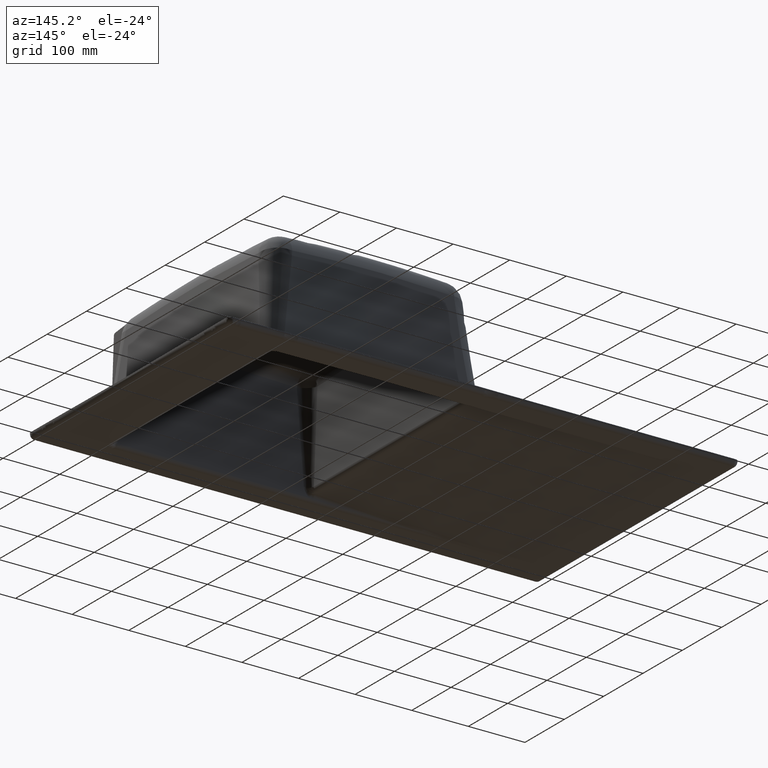
[diagram: clean part render]
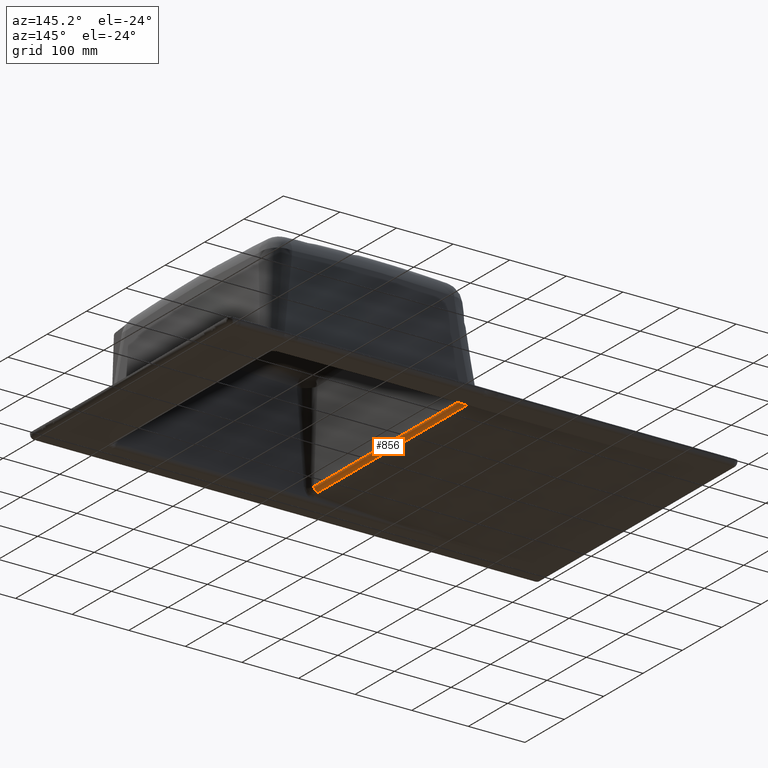
[diagram: same view with one face highlighted and labeled with its STEP entity id]
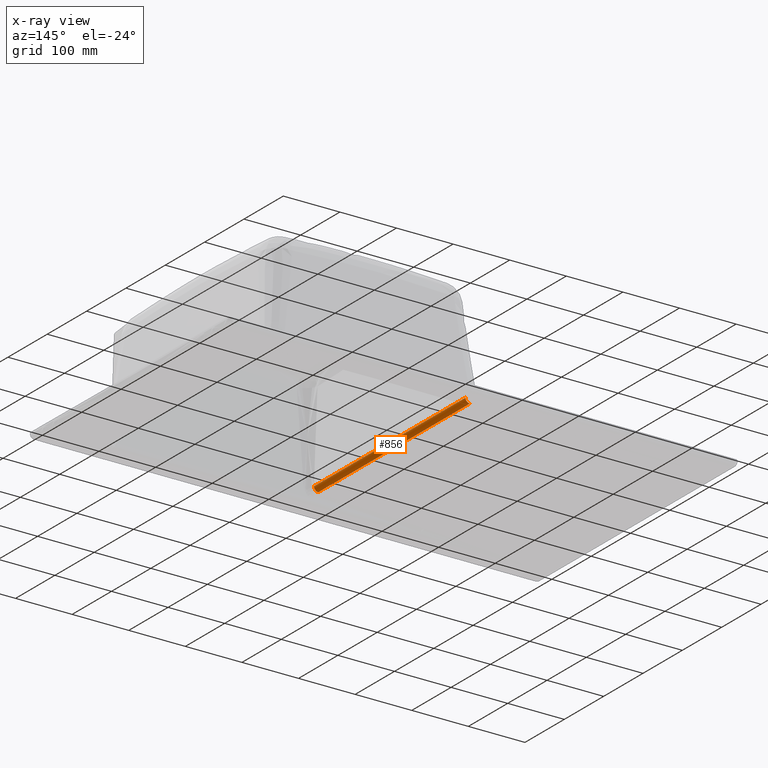
[diagram: x-ray of the same camera — body ghosted, the highlighted face saturated]
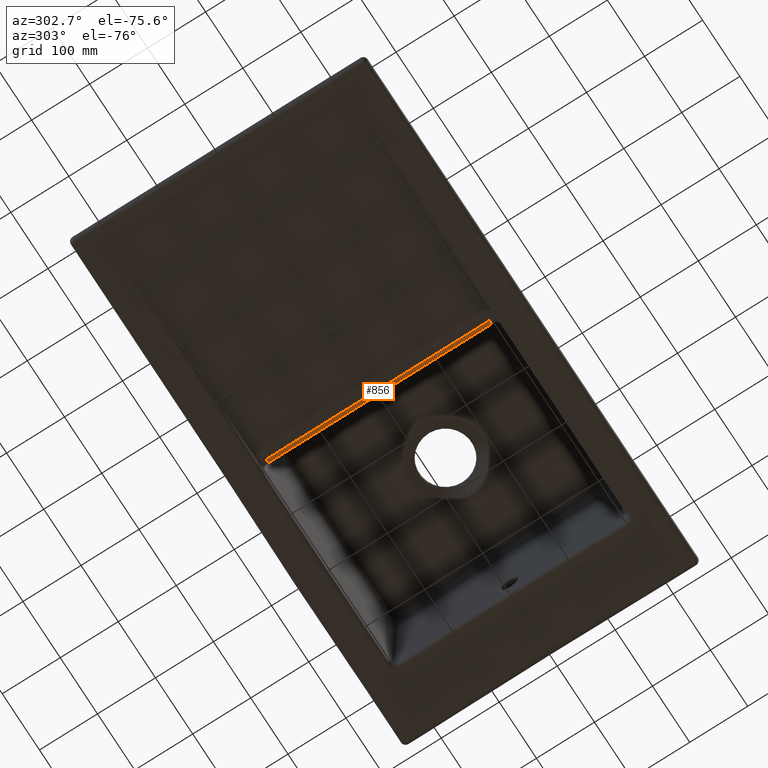
[diagram: same view with one face highlighted and labeled with its STEP entity id]
A machine part, auxiliary view. The second image highlights one B-rep face of the part: STEP entity #856.
The next image is the same camera in x-ray: the body ghosted, the highlighted face saturated — about 0% of this face is hidden behind the body in this view.
A second angle (auxiliary view) of the same face is appended — the face is thin or edge-on in the first view.
In plain terms, the highlighted cylindrical surface (edge-blend (fillet) strip) has radius 8 mm, axis along (-0, 1, -0).
Its self-contained STEP definition (entity closure, byte-faithful):
#323=CYLINDRICAL_SURFACE('',#4382,8.);
#380=LINE('',#8516,#470);
#392=LINE('',#11049,#482);
#470=VECTOR('',#4790,1.);
#482=VECTOR('',#4890,1.);
#658=CIRCLE('',#4381,8.);
#856=ADVANCED_FACE('',(#1161),#323,.T.);
#1161=FACE_OUTER_BOUND('',#1435,.T.);
#1435=EDGE_LOOP('',(#2271,#2272,#2273,#2274));
#2271=ORIENTED_EDGE('',*,*,#3619,.T.);
#2272=ORIENTED_EDGE('',*,*,#3501,.T.);
#2273=ORIENTED_EDGE('',*,*,#3620,.F.);
#2274=ORIENTED_EDGE('',*,*,#3621,.F.);
#3015=VERTEX_POINT('',#8367);
#3017=VERTEX_POINT('',#8515);
#3083=VERTEX_POINT('',#10986);
#3084=VERTEX_POINT('',#11048);
#3501=EDGE_CURVE('',#3015,#3017,#380,.T.);
#3619=EDGE_CURVE('',#3083,#3015,#4043,.T.);
#3620=EDGE_CURVE('',#3084,#3017,#658,.T.);
#3621=EDGE_CURVE('',#3083,#3084,#392,.T.);
#4043=B_SPLINE_CURVE_WITH_KNOTS('',3,(#10987,#10988,#10989,#10990,#10991,
#10992),.UNSPECIFIED.,.F.,.F.,(4,2,4),(0.,0.5,1.),.UNSPECIFIED.);
#4381=AXIS2_PLACEMENT_3D('',#11047,#4888,#4889);
#4382=AXIS2_PLACEMENT_3D('',#11050,#4891,#4892);
#4790=DIRECTION('',(1.35724477123812E-16,-1.,4.73960318002864E-18));
#4888=DIRECTION('',(-3.48643250064177E-15,-1.,-1.21748905703446E-16));
#4889=DIRECTION('',(1.,-3.46944695195361E-15,0.));
#4890=DIRECTION('',(1.35724477123812E-16,-1.,4.73960318002864E-18));
#4891=DIRECTION('',(-1.35724477123812E-16,1.,-4.73960318002864E-18));
#4892=DIRECTION('',(1.,0.,0.));
#8367=CARTESIAN_POINT('',(-174.547784930605,192.488390696791,20.7658221788002));
#8515=CARTESIAN_POINT('',(-174.547752200423,-192.606044519389,20.768111103798));
#8516=CARTESIAN_POINT('',(-174.547752200423,205.,20.7681111037972));
#10986=CARTESIAN_POINT('',(-182.248902650184,192.488663261651,13.3310420737012));
#10987=CARTESIAN_POINT('',(-182.249068628881,192.488663705125,13.3310362775974));
#10988=CARTESIAN_POINT('',(-180.295490695265,192.488663705125,13.3992567223014));
#10989=CARTESIAN_POINT('',(-178.377140680722,192.488663705125,14.2135479767301));
#10990=CARTESIAN_POINT('',(-175.564854753721,192.488663705125,16.9293408539468));
#10991=CARTESIAN_POINT('',(-174.684110042058,192.488663705125,18.8181038825493));
#10992=CARTESIAN_POINT('',(-174.547752215626,192.488663705125,20.7681108863719));
#11047=CARTESIAN_POINT('',(-182.528264602501,-192.606044519389,21.3261628937502));
#11048=CARTESIAN_POINT('',(-182.249068628881,-192.606044519389,13.3310362775974));
#11049=CARTESIAN_POINT('',(-182.249068628881,205.,13.3310362775974));
#11050=CARTESIAN_POINT('',(-182.528264602501,205.,21.3261628937502));